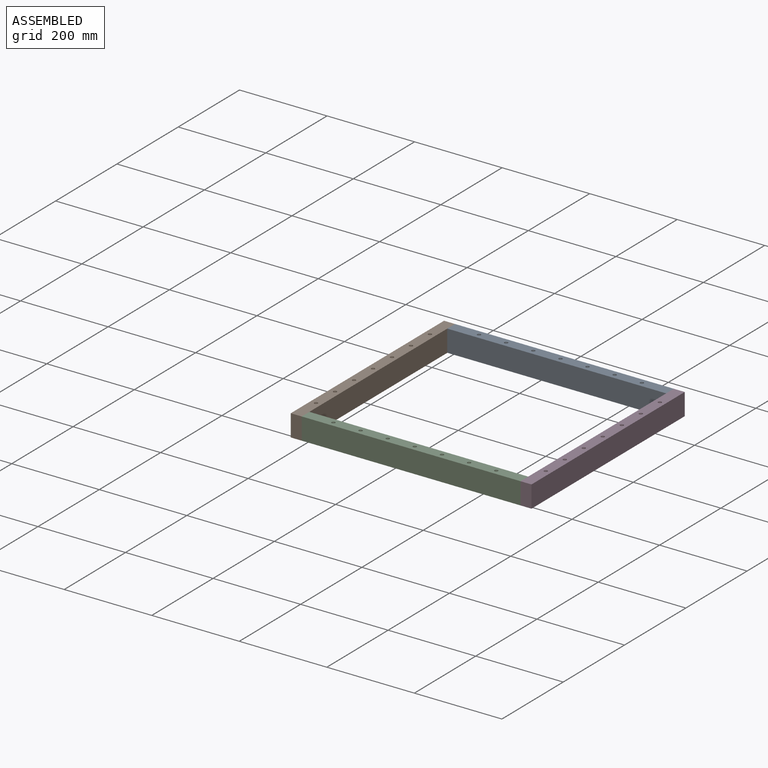
[diagram: assembled view]
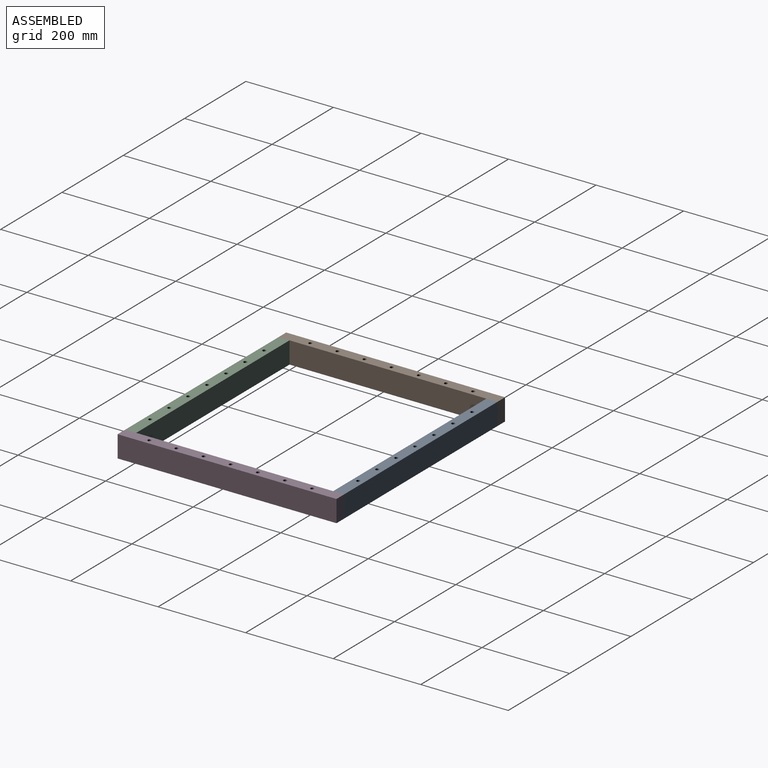
[diagram: assembled view, second angle]
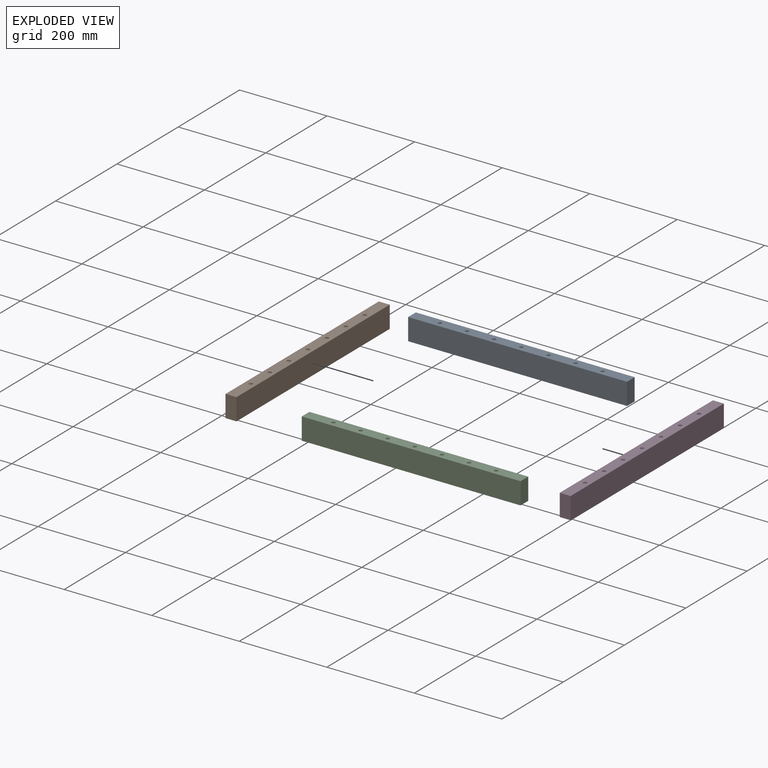
[diagram: exploded view]
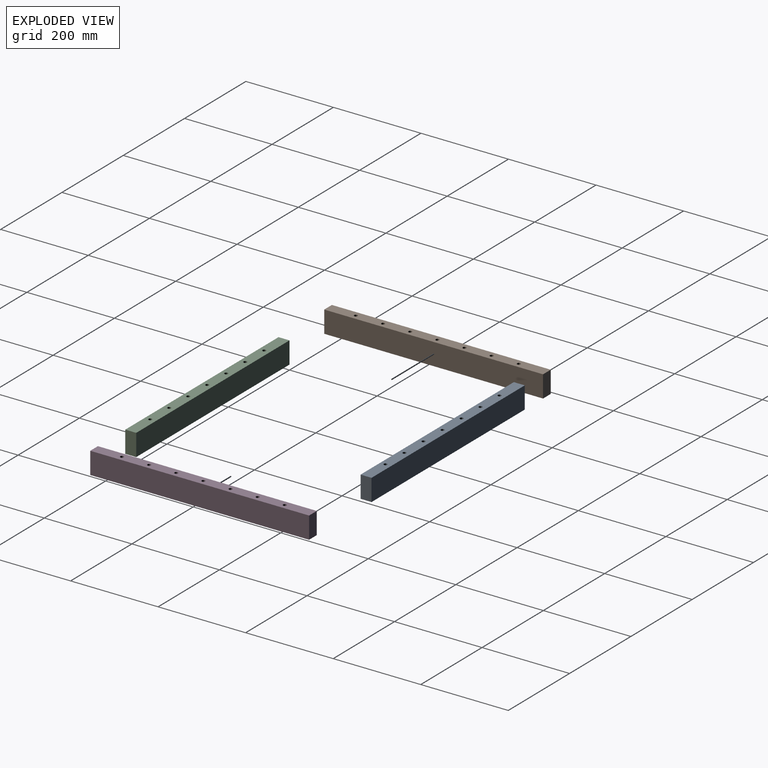
[diagram: exploded view, second angle]
ASSEMBLY  parts=4 mates=4
PART A: 13 faces, bbox 500x25x50 mm
  f0: plane 500x25mm, normal (0,0,-1), area 12148.1mm2, adj f1,f3,f4,f5,f6,f7,f8,f9
  f1: plane 50x25mm, normal (1,0,0), area 1250mm2, adj f0,f2,f4,f5
  f2: plane 500x25mm, normal (0,0,1), area 12148.1mm2, adj f1,f3,f4,f5,f6,f7,f8,f9
  f3: plane 50x25mm, normal (-1,0,0), area 1250mm2, adj f0,f2,f4,f5
  f4: plane 500x50mm, normal (0,-1,0), area 25000mm2, adj f0,f1,f2,f3
  f5: plane 500x50mm, normal (0,1,0), area 25000mm2, adj f0,f1,f2,f3
  f6: cylinder r=4mm len=50mm, axis (0,0,1), area 1256.6mm2, adj f0,f2
  f7: cylinder r=4mm len=50mm, axis (0,0,1), area 1256.6mm2, adj f0,f2
  f8: cylinder r=4mm len=50mm, axis (0,0,1), area 1256.6mm2, adj f0,f2
  f9: cylinder r=4mm len=50mm, axis (0,0,1), area 1256.6mm2, adj f0,f2
  f10: cylinder r=4mm len=50mm, axis (0,0,1), area 1256.6mm2, adj f0,f2
  f11: cylinder r=4mm len=50mm, axis (0,0,1), area 1256.6mm2, adj f0,f2
  f12: cylinder r=4mm len=50mm, axis (0,0,1), area 1256.6mm2, adj f0,f2
PART B: same geometry as A
PART C: same geometry as A
PART D: same geometry as A
PLACE A t=(250,475,25)mm
PLACE B rot(axis=(0,0,1),90deg) t=(-25,225,25)mm
PLACE C t=(250,0,25)mm
PLACE D rot(axis=(0,0,1),90deg) t=(500,225,25)mm
MATE fastened C.f1 <-> D.f5  axis (1,0,0) through (500,-25,25)mm
MATE fastened C.f3 <-> B.f4  axis (-1,0,0) through (0,-25,25)mm
MATE fastened B.f4 <-> A.f3  axis (1,0,0) through (0,475,25)mm
MATE fastened A.f1 <-> D.f5  axis (1,0,0) through (500,475,25)mm
